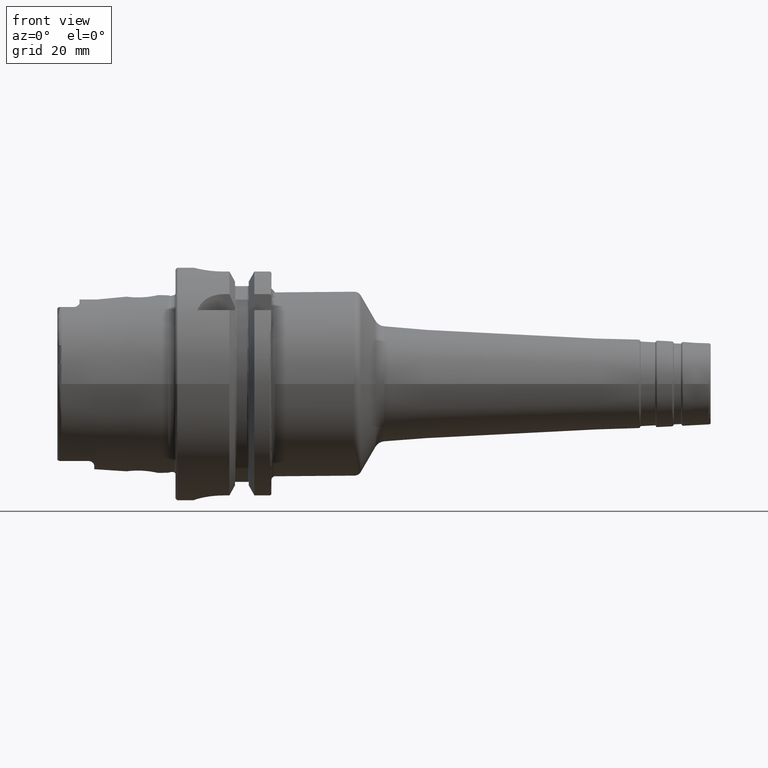
[diagram: clean part render]
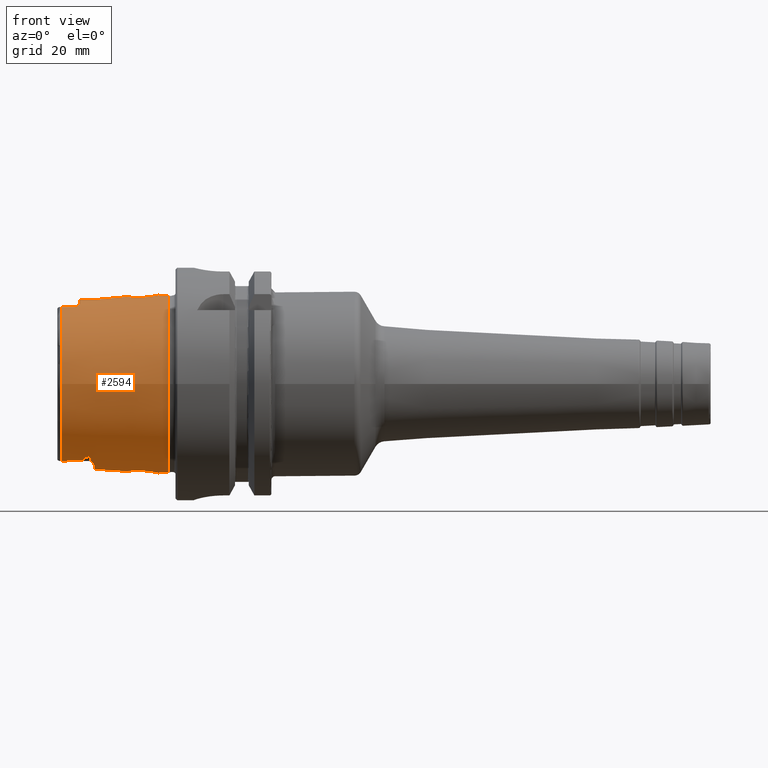
[diagram: same view with one face highlighted and labeled with its STEP entity id]
A machine part, front view. The second image highlights one B-rep face of the part: STEP entity #2594.
In plain terms, the highlighted conical surface has half-angle 2.868 deg.
Its self-contained STEP definition (entity closure, byte-faithful):
#15=(
BOUNDED_CURVE()
B_SPLINE_CURVE(2,(#4506,#4507,#4508),.UNSPECIFIED.,.F.,.F.)
B_SPLINE_CURVE_WITH_KNOTS((3,3),(0.409626932432081,0.704053423593105),
 .UNSPECIFIED.)
CURVE()
GEOMETRIC_REPRESENTATION_ITEM()
RATIONAL_B_SPLINE_CURVE((1.00336468859939,1.00336468859939,1.00162640098087))
REPRESENTATION_ITEM('')
);
#16=(
BOUNDED_CURVE()
B_SPLINE_CURVE(2,(#4573,#4574,#4575),.UNSPECIFIED.,.F.,.F.)
B_SPLINE_CURVE_WITH_KNOTS((3,3),(0.115200441271059,0.409626932432082),
 .UNSPECIFIED.)
CURVE()
GEOMETRIC_REPRESENTATION_ITEM()
RATIONAL_B_SPLINE_CURVE((1.00162640098087,1.00336468859939,1.00336468859939))
REPRESENTATION_ITEM('')
);
#32=B_SPLINE_CURVE_WITH_KNOTS('',3,(#4245,#4246,#4247,#4248,#4249,#4250,
#4251,#4252,#4253,#4254,#4255,#4256,#4257,#4258,#4259,#4260,#4261,#4262),
 .UNSPECIFIED.,.F.,.F.,(4,2,2,2,2,2,2,2,4),(1.51539778880184,1.52261182847659,
1.52982586815134,1.54425394750083,1.60399250706955,1.66373106663827,1.83461413050895,
2.00549719437962,2.0934503680651),.UNSPECIFIED.);
#34=B_SPLINE_CURVE_WITH_KNOTS('',3,(#4293,#4294,#4295,#4296,#4297,#4298,
#4299,#4300),.UNSPECIFIED.,.F.,.F.,(4,2,2,4),(1.77153596711132,1.83492838643131,
2.00584149209106,2.09371558288111),.UNSPECIFIED.);
#35=B_SPLINE_CURVE_WITH_KNOTS('',3,(#4317,#4318,#4319,#4320,#4321,#4322,
#4323,#4324),.UNSPECIFIED.,.F.,.F.,(4,2,2,4),(0.937604543168422,1.02547863395848,
1.19639173961822,1.25978415893822),.UNSPECIFIED.);
#39=B_SPLINE_CURVE_WITH_KNOTS('',3,(#4456,#4457,#4458,#4459,#4460,#4461,
#4462,#4463,#4464,#4465,#4466,#4467,#4468,#4469,#4470,#4471,#4472,#4473,
#4474,#4475,#4476),.UNSPECIFIED.,.T.,.F.,(4,1,1,1,1,1,1,1,1,1,1,1,1,1,1,
1,1,1,4),(-2.26557970640445,-2.10375258451842,-1.94192546263239,-1.86101190168937,
-1.78009834074636,-1.61827121886032,-1.45644409697429,-1.29461697508826,
-1.18673222716424,-1.07884747924022,-1.0249051052782,-0.970962731316194,
-0.755193235468151,-0.647308487544129,-0.485481365658097,-0.404567804715081,
-0.323654243772065,-0.161827121886032,0.),.UNSPECIFIED.);
#40=B_SPLINE_CURVE_WITH_KNOTS('',3,(#4487,#4488,#4489,#4490,#4491,#4492,
#4493,#4494,#4495,#4496,#4497,#4498,#4499,#4500,#4501,#4502,#4503,#4504),
 .UNSPECIFIED.,.F.,.F.,(4,2,2,2,2,2,2,2,4),(0.937345209538582,1.02529838322405,
1.19618144709472,1.36706451096539,1.42680307053412,1.48654163010284,1.50096970945234,
1.50818374912708,1.51539778880183),.UNSPECIFIED.);
#41=B_SPLINE_CURVE_WITH_KNOTS('',3,(#4510,#4511,#4512,#4513,#4514,#4515,
#4516,#4517,#4518,#4519,#4520,#4521,#4522,#4523,#4524,#4525,#4526,#4527),
 .UNSPECIFIED.,.F.,.F.,(4,2,2,2,2,2,2,2,4),(0.,0.0903555875079969,0.135533381261995,
0.180711175015994,0.191679253692351,0.19716329303053,0.202647332368709,
0.208141673454593,0.210684760739668),.UNSPECIFIED.);
#42=B_SPLINE_CURVE_WITH_KNOTS('',3,(#4529,#4530,#4531,#4532,#4533,#4534,
#4535,#4536,#4537,#4538),.UNSPECIFIED.,.F.,.F.,(4,2,2,2,4),(0.278659319230644,
0.333918541832918,0.442805459609059,0.482035165304725,0.500954004489182),
 .UNSPECIFIED.);
#43=B_SPLINE_CURVE_WITH_KNOTS('',3,(#4542,#4543,#4544,#4545,#4546,#4547,
#4548,#4549,#4550,#4551,#4552,#4553),.UNSPECIFIED.,.F.,.F.,(4,2,2,2,2,4),
(0.500954004487676,0.50386398744684,0.528331134037123,0.580812359186529,
0.712749669755937,0.726249722962502),.UNSPECIFIED.);
#44=B_SPLINE_CURVE_WITH_KNOTS('',3,(#4555,#4556,#4557,#4558,#4559,#4560,
#4561,#4562,#4563,#4564,#4565,#4566,#4567,#4568,#4569,#4570,#4571,#4572),
 .UNSPECIFIED.,.F.,.F.,(4,2,2,2,2,2,2,2,4),(0.599581967500703,0.602125054785784,
0.607619395871668,0.613103435209847,0.618587474548027,0.629555553224386,
0.674733346978385,0.719911140732385,0.810266728240384),.UNSPECIFIED.);
#45=B_SPLINE_CURVE_WITH_KNOTS('',3,(#4578,#4579,#4580,#4581,#4582,#4583,
#4584,#4585,#4586,#4587,#4588,#4589,#4590,#4591),.UNSPECIFIED.,.F.,.F.,
(4,2,2,2,2,2,4),(0.612787130114313,0.692070205833102,0.846913877835571,
0.923866042650838,0.97973233720279,1.02631946127952,1.05465853457734),
 .UNSPECIFIED.);
#46=B_SPLINE_CURVE_WITH_KNOTS('',3,(#4594,#4595,#4596,#4597,#4598,#4599,
#4600,#4601,#4602,#4603,#4604,#4605,#4606,#4607),.UNSPECIFIED.,.F.,.F.,
(4,2,2,2,2,2,4),(0.413162960284885,0.443293122422243,0.485069563612126,
0.532728756474865,0.604908335246701,0.737193690325506,0.813919818316776),
 .UNSPECIFIED.);
#47=B_SPLINE_CURVE_WITH_KNOTS('',3,(#4610,#4611,#4612,#4613,#4614,#4615,
#4616,#4617,#4618,#4619,#4620,#4621,#4622,#4623,#4624,#4625,#4626,#4627,
#4628,#4629),.UNSPECIFIED.,.T.,.F.,(4,1,1,1,1,1,1,1,1,1,1,1,1,1,1,1,1,4),
(-2.26557970640445,-2.10375258451842,-1.94192546263239,-1.78009834074636,
-1.61827121886032,-1.45644409697429,-1.37553053603127,-1.29461697508826,
-1.18673222716424,-1.07884747924022,-0.970962731316194,-0.755193235468151,
-0.647308487544129,-0.485481365658097,-0.404567804715081,-0.323654243772065,
-0.161827121886032,0.),.UNSPECIFIED.);
#109=CONICAL_SURFACE('',#2873,23.4974838444284,0.0500583457465973);
#125=FACE_BOUND('',#629,.T.);
#126=FACE_BOUND('',#630,.T.);
#217=LINE('',#4483,#334);
#334=VECTOR('',#3461,23.4974838444284);
#488=FACE_OUTER_BOUND('',#628,.T.);
#628=EDGE_LOOP('',(#1976,#1977,#1978,#1979,#1980,#1981,#1982,#1983,#1984,
#1985,#1986,#1987,#1988,#1989,#1990,#1991,#1992,#1993,#1994,#1995,#1996));
#629=EDGE_LOOP('',(#1997));
#630=EDGE_LOOP('',(#1998));
#841=CIRCLE('',#2874,24.2204308617234);
#842=CIRCLE('',#2875,24.2204308617234);
#843=CIRCLE('',#2876,22.7745368271334);
#844=CIRCLE('',#2877,23.2184268537074);
#845=CIRCLE('',#2878,22.7745368271334);
#846=CIRCLE('',#2879,23.0180260521042);
#847=CIRCLE('',#2880,22.7745368271334);
#1067=VERTEX_POINT('',#4231);
#1068=VERTEX_POINT('',#4244);
#1074=VERTEX_POINT('',#4279);
#1075=VERTEX_POINT('',#4292);
#1081=VERTEX_POINT('',#4314);
#1082=VERTEX_POINT('',#4316);
#1085=VERTEX_POINT('',#4427);
#1088=VERTEX_POINT('',#4478);
#1089=VERTEX_POINT('',#4479);
#1090=VERTEX_POINT('',#4482);
#1091=VERTEX_POINT('',#4484);
#1092=VERTEX_POINT('',#4486);
#1093=VERTEX_POINT('',#4505);
#1094=VERTEX_POINT('',#4509);
#1095=VERTEX_POINT('',#4528);
#1096=VERTEX_POINT('',#4539);
#1097=VERTEX_POINT('',#4541);
#1098=VERTEX_POINT('',#4554);
#1099=VERTEX_POINT('',#4577);
#1100=VERTEX_POINT('',#4592);
#1101=VERTEX_POINT('',#4609);
#1394=EDGE_CURVE('',#1068,#1067,#32,.T.);
#1404=EDGE_CURVE('',#1075,#1074,#34,.T.);
#1412=EDGE_CURVE('',#1082,#1081,#35,.T.);
#1420=EDGE_CURVE('',#1085,#1085,#39,.T.);
#1421=EDGE_CURVE('',#1088,#1089,#841,.T.);
#1422=EDGE_CURVE('',#1089,#1088,#842,.T.);
#1423=EDGE_CURVE('',#1089,#1090,#217,.T.);
#1424=EDGE_CURVE('',#1090,#1091,#843,.T.);
#1425=EDGE_CURVE('',#1091,#1092,#40,.T.);
#1426=EDGE_CURVE('',#1092,#1093,#15,.T.);
#1427=EDGE_CURVE('',#1094,#1093,#41,.T.);
#1428=EDGE_CURVE('',#1095,#1094,#42,.T.);
#1429=EDGE_CURVE('',#1095,#1096,#844,.T.);
#1430=EDGE_CURVE('',#1097,#1096,#43,.T.);
#1431=EDGE_CURVE('',#1098,#1097,#44,.T.);
#1432=EDGE_CURVE('',#1098,#1068,#16,.T.);
#1433=EDGE_CURVE('',#1067,#1082,#845,.T.);
#1434=EDGE_CURVE('',#1099,#1081,#45,.T.);
#1435=EDGE_CURVE('',#1099,#1100,#846,.T.);
#1436=EDGE_CURVE('',#1075,#1100,#46,.T.);
#1437=EDGE_CURVE('',#1074,#1090,#847,.T.);
#1438=EDGE_CURVE('',#1101,#1101,#47,.T.);
#1976=ORIENTED_EDGE('',*,*,#1421,.F.);
#1977=ORIENTED_EDGE('',*,*,#1422,.F.);
#1978=ORIENTED_EDGE('',*,*,#1423,.T.);
#1979=ORIENTED_EDGE('',*,*,#1424,.T.);
#1980=ORIENTED_EDGE('',*,*,#1425,.T.);
#1981=ORIENTED_EDGE('',*,*,#1426,.T.);
#1982=ORIENTED_EDGE('',*,*,#1427,.F.);
#1983=ORIENTED_EDGE('',*,*,#1428,.F.);
#1984=ORIENTED_EDGE('',*,*,#1429,.T.);
#1985=ORIENTED_EDGE('',*,*,#1430,.F.);
#1986=ORIENTED_EDGE('',*,*,#1431,.F.);
#1987=ORIENTED_EDGE('',*,*,#1432,.T.);
#1988=ORIENTED_EDGE('',*,*,#1394,.T.);
#1989=ORIENTED_EDGE('',*,*,#1433,.T.);
#1990=ORIENTED_EDGE('',*,*,#1412,.T.);
#1991=ORIENTED_EDGE('',*,*,#1434,.F.);
#1992=ORIENTED_EDGE('',*,*,#1435,.T.);
#1993=ORIENTED_EDGE('',*,*,#1436,.F.);
#1994=ORIENTED_EDGE('',*,*,#1404,.T.);
#1995=ORIENTED_EDGE('',*,*,#1437,.T.);
#1996=ORIENTED_EDGE('',*,*,#1423,.F.);
#1997=ORIENTED_EDGE('',*,*,#1438,.F.);
#1998=ORIENTED_EDGE('',*,*,#1420,.F.);
#2594=ADVANCED_FACE('',(#488,#125,#126),#109,.T.);
#2873=AXIS2_PLACEMENT_3D('',#4477,#3455,#3456);
#2874=AXIS2_PLACEMENT_3D('',#4480,#3457,#3458);
#2875=AXIS2_PLACEMENT_3D('',#4481,#3459,#3460);
#2876=AXIS2_PLACEMENT_3D('',#4485,#3462,#3463);
#2877=AXIS2_PLACEMENT_3D('',#4540,#3464,#3465);
#2878=AXIS2_PLACEMENT_3D('',#4576,#3466,#3467);
#2879=AXIS2_PLACEMENT_3D('',#4593,#3468,#3469);
#2880=AXIS2_PLACEMENT_3D('',#4608,#3470,#3471);
#3455=DIRECTION('center_axis',(1.,0.,0.));
#3456=DIRECTION('ref_axis',(0.,1.,0.));
#3457=DIRECTION('center_axis',(1.,0.,0.));
#3458=DIRECTION('ref_axis',(0.,0.,-1.));
#3459=DIRECTION('center_axis',(1.,0.,0.));
#3460=DIRECTION('ref_axis',(0.,0.,-1.));
#3461=DIRECTION('',(-0.998747342623037,0.0500374420151821,6.1278193201414E-18));
#3462=DIRECTION('center_axis',(1.,0.,0.));
#3463=DIRECTION('ref_axis',(0.,0.,-1.));
#3464=DIRECTION('center_axis',(1.,0.,0.));
#3465=DIRECTION('ref_axis',(0.,1.,0.));
#3466=DIRECTION('center_axis',(1.,0.,0.));
#3467=DIRECTION('ref_axis',(0.,0.,-1.));
#3468=DIRECTION('center_axis',(1.,0.,0.));
#3469=DIRECTION('ref_axis',(0.,1.,0.));
#3470=DIRECTION('center_axis',(1.,0.,0.));
#3471=DIRECTION('ref_axis',(0.,0.,-1.));
#4231=CARTESIAN_POINT('',(-30.8600449304182,9.1175788960984,-20.8698175067219));
#4244=CARTESIAN_POINT('',(-25.0978148584663,10.4556386714692,-20.5570425901345));
#4245=CARTESIAN_POINT('Ctrl Pts',(-25.0978148584663,10.4556386714692,-20.5570425901345));
#4246=CARTESIAN_POINT('Ctrl Pts',(-25.0978148584663,10.434204936409,-20.5679441285336));
#4247=CARTESIAN_POINT('Ctrl Pts',(-25.1030756340098,10.4135952575897,-20.5780886428205));
#4248=CARTESIAN_POINT('Ctrl Pts',(-25.1212840412595,10.3742534446523,-20.5969290505833));
#4249=CARTESIAN_POINT('Ctrl Pts',(-25.1342239230183,10.3555186194877,-20.605626813756));
#4250=CARTESIAN_POINT('Ctrl Pts',(-25.1803732229877,10.3024924958122,-20.6296329719333));
#4251=CARTESIAN_POINT('Ctrl Pts',(-25.2208246412482,10.2713306216733,-20.6428847988051));
#4252=CARTESIAN_POINT('Ctrl Pts',(-25.4220827984543,10.138547720478,-20.6974983203461));
#4253=CARTESIAN_POINT('Ctrl Pts',(-25.6226314158802,10.0671936374525,-20.7209199758995));
#4254=CARTESIAN_POINT('Ctrl Pts',(-26.0321916388999,9.93536599911188,-20.7617058242075));
#4255=CARTESIAN_POINT('Ctrl Pts',(-26.2430784477608,9.8799536310347,-20.7763753921414));
#4256=CARTESIAN_POINT('Ctrl Pts',(-26.9889879780946,9.69930871486834,-20.8204848534175));
#4257=CARTESIAN_POINT('Ctrl Pts',(-27.5600080230791,9.59491882494626,-20.8370744460606));
#4258=CARTESIAN_POINT('Ctrl Pts',(-28.7253632733501,9.40260250516234,-20.8605355436413));
#4259=CARTESIAN_POINT('Ctrl Pts',(-29.3200764392133,9.31683719872073,-20.8662835753638));
#4260=CARTESIAN_POINT('Ctrl Pts',(-30.2333885582946,9.19553638844306,-20.8699331931734));
#4261=CARTESIAN_POINT('Ctrl Pts',(-30.5458909643235,9.15590567779843,-20.8702489912062));
#4262=CARTESIAN_POINT('Ctrl Pts',(-30.8600449304182,9.11757889609839,-20.8698175067219));
#4279=CARTESIAN_POINT('',(-30.8600449304182,-9.1175788960984,20.8698175067219));
#4292=CARTESIAN_POINT('',(-27.5000000000755,-9.61067758640857,20.8329168403914));
#4293=CARTESIAN_POINT('Ctrl Pts',(-27.500000000078,-9.61067758642201,20.8329168403892));
#4294=CARTESIAN_POINT('Ctrl Pts',(-27.7125737548958,-9.57148784129481,20.8392673030342));
#4295=CARTESIAN_POINT('Ctrl Pts',(-27.9270578144772,-9.53434241390281,20.8444654011212));
#4296=CARTESIAN_POINT('Ctrl Pts',(-28.7259960474271,-9.40250589525003,20.8605443506117));
#4297=CARTESIAN_POINT('Ctrl Pts',(-29.3208153495341,-9.3167323629879,20.8662898636256));
#4298=CARTESIAN_POINT('Ctrl Pts',(-30.2339565561897,-9.19546438357122,20.8699337533607));
#4299=CARTESIAN_POINT('Ctrl Pts',(-30.5461763429502,-9.15587086160794,20.8702485992441));
#4300=CARTESIAN_POINT('Ctrl Pts',(-30.8600449304182,-9.11757889609839,20.8698175067219));
#4314=CARTESIAN_POINT('',(-27.5000000000755,9.61067758640857,20.8329168403914));
#4316=CARTESIAN_POINT('',(-30.8600449304182,9.1175788960984,20.8698175067219));
#4317=CARTESIAN_POINT('Ctrl Pts',(-30.8600449304182,9.11757889609839,20.8698175067219));
#4318=CARTESIAN_POINT('Ctrl Pts',(-30.5461763429502,9.15587086160794,20.8702485992441));
#4319=CARTESIAN_POINT('Ctrl Pts',(-30.2339565561898,9.1954643835712,20.8699337533607));
#4320=CARTESIAN_POINT('Ctrl Pts',(-29.3208153495341,9.31673236298789,20.8662898636256));
#4321=CARTESIAN_POINT('Ctrl Pts',(-28.7259960474271,9.40250589525004,20.8605443506117));
#4322=CARTESIAN_POINT('Ctrl Pts',(-27.9270578144772,9.53434241390281,20.8444654011213));
#4323=CARTESIAN_POINT('Ctrl Pts',(-27.7125737548958,9.57148784129481,20.8392673030342));
#4324=CARTESIAN_POINT('Ctrl Pts',(-27.500000000078,9.61067758642201,20.8329168403892));
#4427=CARTESIAN_POINT('',(-9.02925407423461,4.24282684078987,-23.4881339907642));
#4456=CARTESIAN_POINT('Ctrl Pts',(-9.02925407423461,4.24282684078987,-23.4881339907642));
#4457=CARTESIAN_POINT('Ctrl Pts',(-8.41794937729803,4.24763962021184,-23.5183867686952));
#4458=CARTESIAN_POINT('Ctrl Pts',(-7.09732684210524,3.96167042797061,-23.6399991166518));
#4459=CARTESIAN_POINT('Ctrl Pts',(-5.85862556428085,2.97381592636213,-23.8514770065909));
#4460=CARTESIAN_POINT('Ctrl Pts',(-5.16091834655909,1.90904489936624,-23.9915213036756));
#4461=CARTESIAN_POINT('Ctrl Pts',(-4.7192295801593,0.668721272737722,-24.0894047094142));
#4462=CARTESIAN_POINT('Ctrl Pts',(-4.69847323329922,-0.89943965232534,-24.0935544797084));
#4463=CARTESIAN_POINT('Ctrl Pts',(-5.55540783240537,-2.73292283801133,-23.9044866287245));
#4464=CARTESIAN_POINT('Ctrl Pts',(-6.84099834624704,-3.76948663147273,-23.6816666687589));
#4465=CARTESIAN_POINT('Ctrl Pts',(-8.32233390618421,-4.25559455937192,-23.5222287213409));
#4466=CARTESIAN_POINT('Ctrl Pts',(-9.34887268913082,-4.25610778302827,-23.4687535956096));
#4467=CARTESIAN_POINT('Ctrl Pts',(-10.1915677140488,-4.08658685046146,-23.4566376659774));
#4468=CARTESIAN_POINT('Ctrl Pts',(-11.420207255051,-3.61575321059654,-23.4734883841045));
#4469=CARTESIAN_POINT('Ctrl Pts',(-12.5283545007694,-2.6317274185749,-23.5686081216677));
#4470=CARTESIAN_POINT('Ctrl Pts',(-13.2832721623887,-0.775397661242597,
-23.6605550548532));
#4471=CARTESIAN_POINT('Ctrl Pts',(-13.2938327740737,0.570583952086489,-23.6623781319302));
#4472=CARTESIAN_POINT('Ctrl Pts',(-12.8809642347665,1.82501152311243,-23.6106605418293));
#4473=CARTESIAN_POINT('Ctrl Pts',(-12.1975836305622,2.91182012527324,-23.5396565922848));
#4474=CARTESIAN_POINT('Ctrl Pts',(-10.9677588719499,3.92910839902513,-23.4490545719123));
#4475=CARTESIAN_POINT('Ctrl Pts',(-9.64055877117116,4.23801406136791,-23.4578812128331));
#4476=CARTESIAN_POINT('Ctrl Pts',(-9.02925407423461,4.24282684078987,-23.4881339907642));
#4477=CARTESIAN_POINT('Origin',(-16.4300224652091,0.,0.));
#4478=CARTESIAN_POINT('',(-2.,24.2204308617234,0.));
#4479=CARTESIAN_POINT('',(-2.,-24.2204308617234,-2.96614731287794E-15));
#4480=CARTESIAN_POINT('Origin',(-2.,0.,0.));
#4481=CARTESIAN_POINT('Origin',(-2.,0.,0.));
#4482=CARTESIAN_POINT('',(-30.8600449304182,-22.7745368271334,-2.78907636274124E-15));
#4483=CARTESIAN_POINT('',(-16.4300224652091,-23.4974838444284,-2.87761183780959E-15));
#4484=CARTESIAN_POINT('',(-30.8600449304182,-9.1175788960984,-20.8698175067219));
#4485=CARTESIAN_POINT('Origin',(-30.8600449304182,0.,0.));
#4486=CARTESIAN_POINT('',(-25.0978148584663,-10.4556386714692,-20.5570425901345));
#4487=CARTESIAN_POINT('Ctrl Pts',(-30.8600449304182,-9.11757889609839,-20.8698175067219));
#4488=CARTESIAN_POINT('Ctrl Pts',(-30.5458909643235,-9.15590567779842,-20.8702489912062));
#4489=CARTESIAN_POINT('Ctrl Pts',(-30.2333885582947,-9.19553638844306,-20.8699331931734));
#4490=CARTESIAN_POINT('Ctrl Pts',(-29.3200764392134,-9.31683719872071,-20.8662835753638));
#4491=CARTESIAN_POINT('Ctrl Pts',(-28.7253632733503,-9.40260250516231,-20.8605355436413));
#4492=CARTESIAN_POINT('Ctrl Pts',(-27.5600080230793,-9.59491882494623,-20.8370744460606));
#4493=CARTESIAN_POINT('Ctrl Pts',(-26.9889879780948,-9.69930871486833,-20.8204848534175));
#4494=CARTESIAN_POINT('Ctrl Pts',(-26.243078447761,-9.87995363103469,-20.7763753921414));
#4495=CARTESIAN_POINT('Ctrl Pts',(-26.0321916389,-9.93536599911181,-20.7617058242075));
#4496=CARTESIAN_POINT('Ctrl Pts',(-25.6226314158803,-10.0671936374524,-20.7209199758996));
#4497=CARTESIAN_POINT('Ctrl Pts',(-25.4220827984544,-10.138547720478,-20.6974983203461));
#4498=CARTESIAN_POINT('Ctrl Pts',(-25.2208246412483,-10.2713306216733,-20.6428847988051));
#4499=CARTESIAN_POINT('Ctrl Pts',(-25.1803732229877,-10.3024924958121,-20.6296329719333));
#4500=CARTESIAN_POINT('Ctrl Pts',(-25.1342239230183,-10.3555186194877,-20.6056268137561));
#4501=CARTESIAN_POINT('Ctrl Pts',(-25.1212840412597,-10.3742534446523,-20.5969290505833));
#4502=CARTESIAN_POINT('Ctrl Pts',(-25.10307563401,-10.4135952575897,-20.5780886428205));
#4503=CARTESIAN_POINT('Ctrl Pts',(-25.0978148584663,-10.434204936409,-20.5679441285336));
#4504=CARTESIAN_POINT('Ctrl Pts',(-25.0978148584663,-10.4556386714692,-20.5570425901345));
#4505=CARTESIAN_POINT('',(-23.5,-12.1698923613067,-19.6851459107563));
#4506=CARTESIAN_POINT('Ctrl Pts',(-25.0978148584663,-10.4556386714692,-20.5570425901345));
#4507=CARTESIAN_POINT('Ctrl Pts',(-25.0978148584663,-11.3112805797553,-20.1218495128239));
#4508=CARTESIAN_POINT('Ctrl Pts',(-23.5,-12.1698923613067,-19.6851459107563));
#4509=CARTESIAN_POINT('',(-22.9409864229987,-10.5046262057925,-20.6533579718259));
#4510=CARTESIAN_POINT('Ctrl Pts',(-22.9409864229987,-10.5046262057925,-20.6533579718259));
#4511=CARTESIAN_POINT('Ctrl Pts',(-22.9409864229987,-10.7730829666602,-20.516816595398));
#4512=CARTESIAN_POINT('Ctrl Pts',(-22.9574206817668,-11.0623666606509,-20.3616089931375));
#4513=CARTESIAN_POINT('Ctrl Pts',(-23.0214299513488,-11.4761009466796,-20.1257517714531));
#4514=CARTESIAN_POINT('Ctrl Pts',(-23.0491283200772,-11.6099871059181,-20.0471312410654));
#4515=CARTESIAN_POINT('Ctrl Pts',(-23.1253497318037,-11.8635092488451,-19.8937049027563));
#4516=CARTESIAN_POINT('Ctrl Pts',(-23.1681553584466,-11.9845149642791,-19.8183788237048));
#4517=CARTESIAN_POINT('Ctrl Pts',(-23.2720205567489,-12.1145084587468,-19.7327054731899));
#4518=CARTESIAN_POINT('Ctrl Pts',(-23.2970638659452,-12.1405120406692,-19.7152346163683));
#4519=CARTESIAN_POINT('Ctrl Pts',(-23.340824213029,-12.1694983830269,-19.6947680043585));
#4520=CARTESIAN_POINT('Ctrl Pts',(-23.3564336502031,-12.1775072041959,-19.6888951705931));
#4521=CARTESIAN_POINT('Ctrl Pts',(-23.3894992563298,-12.1884299822762,-19.6801867490419));
#4522=CARTESIAN_POINT('Ctrl Pts',(-23.4069516148396,-12.191352087042,-19.6773469156348));
#4523=CARTESIAN_POINT('Ctrl Pts',(-23.4435003757557,-12.1903876993059,-19.675790353909));
#4524=CARTESIAN_POINT('Ctrl Pts',(-23.4609883159786,-12.1865341044229,-19.6771480362853));
#4525=CARTESIAN_POINT('Ctrl Pts',(-23.4852443648865,-12.1772664781571,-19.6814547071094));
#4526=CARTESIAN_POINT('Ctrl Pts',(-23.4927247382132,-12.1738018414638,-19.6831574869965));
#4527=CARTESIAN_POINT('Ctrl Pts',(-23.5,-12.1698923613067,-19.6851459107563));
#4528=CARTESIAN_POINT('',(-22.,-7.4031250016059,-22.0065691504051));
#4529=CARTESIAN_POINT('Ctrl Pts',(-22.,-7.4031250016064,-22.0065691504049));
#4530=CARTESIAN_POINT('Ctrl Pts',(-22.,-7.64154328791244,-21.9263639914758));
#4531=CARTESIAN_POINT('Ctrl Pts',(-22.0282316966018,-7.93106690411137,-21.8234540350138));
#4532=CARTESIAN_POINT('Ctrl Pts',(-22.2899989017396,-8.94727995671646,-21.421774019244));
#4533=CARTESIAN_POINT('Ctrl Pts',(-22.60775210997,-9.49253651928731,-21.1610368486918));
#4534=CARTESIAN_POINT('Ctrl Pts',(-22.8524785496019,-10.0580168739411,-20.8800894739587));
#4535=CARTESIAN_POINT('Ctrl Pts',(-22.8997008986804,-10.1907353571143,-20.8128334005565));
#4536=CARTESIAN_POINT('Ctrl Pts',(-22.9350020039233,-10.381785274935,-20.7158310407179));
#4537=CARTESIAN_POINT('Ctrl Pts',(-22.9409864229987,-10.4428555441716,-20.6847755123391));
#4538=CARTESIAN_POINT('Ctrl Pts',(-22.9409864229987,-10.5046262057925,-20.6533579718259));
#4539=CARTESIAN_POINT('',(-22.,7.4031250016059,-22.0065691504051));
#4540=CARTESIAN_POINT('Origin',(-22.,0.,0.));
#4541=CARTESIAN_POINT('',(-22.9409864229987,10.5046262057925,-20.6533579718259));
#4542=CARTESIAN_POINT('Ctrl Pts',(-22.9409864229987,10.5046262057925,-20.6533579718259));
#4543=CARTESIAN_POINT('Ctrl Pts',(-22.9409864229987,10.4951250111927,-20.6581904304467));
#4544=CARTESIAN_POINT('Ctrl Pts',(-22.9408450644905,10.4856070684351,-20.6630311043921));
#4545=CARTESIAN_POINT('Ctrl Pts',(-22.9381719760295,10.3958439048842,-20.7086800932502));
#4546=CARTESIAN_POINT('Ctrl Pts',(-22.9258072553349,10.3185989460598,-20.747952822378));
#4547=CARTESIAN_POINT('Ctrl Pts',(-22.8649803787077,10.0769327863764,-20.8704196245159));
#4548=CARTESIAN_POINT('Ctrl Pts',(-22.7887679321626,9.90306802919886,-20.9581178536208));
#4549=CARTESIAN_POINT('Ctrl Pts',(-22.4484945404157,9.18505116717875,-21.3075925571443));
#4550=CARTESIAN_POINT('Ctrl Pts',(-22.0746753976002,8.47121172659649,-21.631485700585));
#4551=CARTESIAN_POINT('Ctrl Pts',(-22.0031617045067,7.56447021316982,-21.9516456669287));
#4552=CARTESIAN_POINT('Ctrl Pts',(-22.,7.48262387019776,-21.9798253150689));
#4553=CARTESIAN_POINT('Ctrl Pts',(-22.,7.40312500160694,-22.0065691504047));
#4554=CARTESIAN_POINT('',(-23.5,12.1698923613067,-19.6851459107563));
#4555=CARTESIAN_POINT('Ctrl Pts',(-23.5,12.1698923613067,-19.6851459107563));
#4556=CARTESIAN_POINT('Ctrl Pts',(-23.4927247382132,12.1738018414639,-19.6831574869965));
#4557=CARTESIAN_POINT('Ctrl Pts',(-23.4852443648865,12.1772664781571,-19.6814547071094));
#4558=CARTESIAN_POINT('Ctrl Pts',(-23.4609883159786,12.1865341044229,-19.6771480362853));
#4559=CARTESIAN_POINT('Ctrl Pts',(-23.4435003757557,12.190387699306,-19.6757903539089));
#4560=CARTESIAN_POINT('Ctrl Pts',(-23.4069516148396,12.1913520870421,-19.6773469156348));
#4561=CARTESIAN_POINT('Ctrl Pts',(-23.3894992563298,12.1884299822762,-19.6801867490419));
#4562=CARTESIAN_POINT('Ctrl Pts',(-23.3564336502031,12.1775072041959,-19.688895170593));
#4563=CARTESIAN_POINT('Ctrl Pts',(-23.340824213029,12.169498383027,-19.6947680043585));
#4564=CARTESIAN_POINT('Ctrl Pts',(-23.2970638659452,12.1405120406693,-19.7152346163683));
#4565=CARTESIAN_POINT('Ctrl Pts',(-23.2720205567489,12.1145084587468,-19.7327054731899));
#4566=CARTESIAN_POINT('Ctrl Pts',(-23.1681553584466,11.9845149642791,-19.8183788237047));
#4567=CARTESIAN_POINT('Ctrl Pts',(-23.1253497318037,11.8635092488451,-19.8937049027563));
#4568=CARTESIAN_POINT('Ctrl Pts',(-23.0491283200772,11.6099871059182,-20.0471312410654));
#4569=CARTESIAN_POINT('Ctrl Pts',(-23.0214299513488,11.4761009466796,-20.1257517714531));
#4570=CARTESIAN_POINT('Ctrl Pts',(-22.9574206817668,11.0623666606509,-20.3616089931375));
#4571=CARTESIAN_POINT('Ctrl Pts',(-22.9409864229987,10.7730829666602,-20.516816595398));
#4572=CARTESIAN_POINT('Ctrl Pts',(-22.9409864229987,10.5046262057925,-20.6533579718259));
#4573=CARTESIAN_POINT('Ctrl Pts',(-23.5,12.1698923613067,-19.6851459107563));
#4574=CARTESIAN_POINT('Ctrl Pts',(-25.0978148584663,11.3112805797553,-20.1218495128239));
#4575=CARTESIAN_POINT('Ctrl Pts',(-25.0978148584662,10.4556386714692,-20.5570425901345));
#4576=CARTESIAN_POINT('Origin',(-30.8600449304182,0.,0.));
#4577=CARTESIAN_POINT('',(-26.,7.14127219004964,21.8822246319466));
#4578=CARTESIAN_POINT('Ctrl Pts',(-26.,7.14127219004961,21.8822246319466));
#4579=CARTESIAN_POINT('Ctrl Pts',(-26.,7.38735946023371,21.801913959314));
#4580=CARTESIAN_POINT('Ctrl Pts',(-26.033972788753,7.63482296419265,21.7146832850108));
#4581=CARTESIAN_POINT('Ctrl Pts',(-26.2194423861809,8.34889404999889,21.4446815988103));
#4582=CARTESIAN_POINT('Ctrl Pts',(-26.4428793547878,8.75952114583654,21.2645357982171));
#4583=CARTESIAN_POINT('Ctrl Pts',(-26.7590254549197,9.19092879202869,21.0625769757814));
#4584=CARTESIAN_POINT('Ctrl Pts',(-26.8729708291721,9.32104212441475,20.9987774802421));
#4585=CARTESIAN_POINT('Ctrl Pts',(-27.0716948778125,9.49280512119961,20.9106159819251));
#4586=CARTESIAN_POINT('Ctrl Pts',(-27.144806553738,9.53932652154805,20.8852782118319));
#4587=CARTESIAN_POINT('Ctrl Pts',(-27.2637975599135,9.59417850538166,20.8535668796639));
#4588=CARTESIAN_POINT('Ctrl Pts',(-27.322222387454,9.61219549867679,20.8420263003947));
#4589=CARTESIAN_POINT('Ctrl Pts',(-27.4236635149584,9.61988157707407,20.8328813745288));
#4590=CARTESIAN_POINT('Ctrl Pts',(-27.4617925463603,9.61772144927266,20.8317754247499));
#4591=CARTESIAN_POINT('Ctrl Pts',(-27.5000000000779,9.61067758642203,20.8329168403892));
#4592=CARTESIAN_POINT('',(-26.,-7.14127219004964,21.8822246319466));
#4593=CARTESIAN_POINT('Origin',(-26.,0.,0.));
#4594=CARTESIAN_POINT('Ctrl Pts',(-27.500000000078,-9.610677586422,20.8329168403892));
#4595=CARTESIAN_POINT('Ctrl Pts',(-27.4634308025005,-9.61741942308555,20.8318243662782));
#4596=CARTESIAN_POINT('Ctrl Pts',(-27.4260889661871,-9.61985292316152,20.8327607188551));
#4597=CARTESIAN_POINT('Ctrl Pts',(-27.3343377981765,-9.61339298685805,20.8408051456548));
#4598=CARTESIAN_POINT('Ctrl Pts',(-27.2828394544385,-9.59996378018902,20.8498476845684));
#4599=CARTESIAN_POINT('Ctrl Pts',(-27.1765640574038,-9.55615724159004,20.8758218933212));
#4600=CARTESIAN_POINT('Ctrl Pts',(-27.111584300389,-9.51976030908576,20.8961199655304));
#4601=CARTESIAN_POINT('Ctrl Pts',(-26.9153060284285,-9.36478934458731,20.9769473005223));
#4602=CARTESIAN_POINT('Ctrl Pts',(-26.7955937204007,-9.23492374831594,21.0413520243865));
#4603=CARTESIAN_POINT('Ctrl Pts',(-26.4809422997755,-8.82026009617074,21.2370375105362));
#4604=CARTESIAN_POINT('Ctrl Pts',(-26.2539798154924,-8.42841535117176,21.4117405279022));
#4605=CARTESIAN_POINT('Ctrl Pts',(-26.0395031937781,-7.68065048502185,21.6986739773255));
#4606=CARTESIAN_POINT('Ctrl Pts',(-26.,-7.40668123592282,21.7956082905937));
#4607=CARTESIAN_POINT('Ctrl Pts',(-26.,-7.14127219004964,21.8822246319466));
#4608=CARTESIAN_POINT('Origin',(-30.8600449304182,0.,0.));
#4609=CARTESIAN_POINT('',(-9.0292540742346,4.24282684078987,23.4881339907642));
#4610=CARTESIAN_POINT('Ctrl Pts',(-9.0292540742346,4.24282684078987,23.4881339907642));
#4611=CARTESIAN_POINT('Ctrl Pts',(-9.64055877117116,4.23801406136791,23.4578812128331));
#4612=CARTESIAN_POINT('Ctrl Pts',(-10.9638730408259,3.9179106610358,23.4490004091406));
#4613=CARTESIAN_POINT('Ctrl Pts',(-12.4526262699356,2.72858679704118,23.5583200576491));
#4614=CARTESIAN_POINT('Ctrl Pts',(-13.2979994443229,0.897319571652653,23.6626290479033));
#4615=CARTESIAN_POINT('Ctrl Pts',(-13.2816532621822,-0.989914262387046,
23.6604543947658));
#4616=CARTESIAN_POINT('Ctrl Pts',(-12.5283475509394,-2.5126406940463,23.5683027954165));
#4617=CARTESIAN_POINT('Ctrl Pts',(-11.644644056388,-3.36168995288758,23.5000429155352));
#4618=CARTESIAN_POINT('Ctrl Pts',(-10.7211638191248,-3.94108956594417,23.4566895241693));
#4619=CARTESIAN_POINT('Ctrl Pts',(-9.5521895652502,-4.26473162662384,23.4572260144777));
#4620=CARTESIAN_POINT('Ctrl Pts',(-8.32320534640719,-4.25325948558034,23.5226080715555));
#4621=CARTESIAN_POINT('Ctrl Pts',(-6.63489792710575,-3.70316169352032,23.7041145541078));
#4622=CARTESIAN_POINT('Ctrl Pts',(-5.41440976031321,-2.55125573233756,23.9362004351798));
#4623=CARTESIAN_POINT('Ctrl Pts',(-4.7000748090091,-0.684877735486038,24.0933895661358));
#4624=CARTESIAN_POINT('Ctrl Pts',(-4.71970772693147,0.665159656526803,24.0893124072651));
#4625=CARTESIAN_POINT('Ctrl Pts',(-5.15905183263974,1.91098326290444,23.9917942104486));
#4626=CARTESIAN_POINT('Ctrl Pts',(-5.85767811305676,2.97386590658898,23.8516162416426));
#4627=CARTESIAN_POINT('Ctrl Pts',(-7.09677486505754,3.96242760844406,23.6400830913262));
#4628=CARTESIAN_POINT('Ctrl Pts',(-8.41794937729803,4.24763962021184,23.5183867686952));
#4629=CARTESIAN_POINT('Ctrl Pts',(-9.0292540742346,4.24282684078988,23.4881339907642));